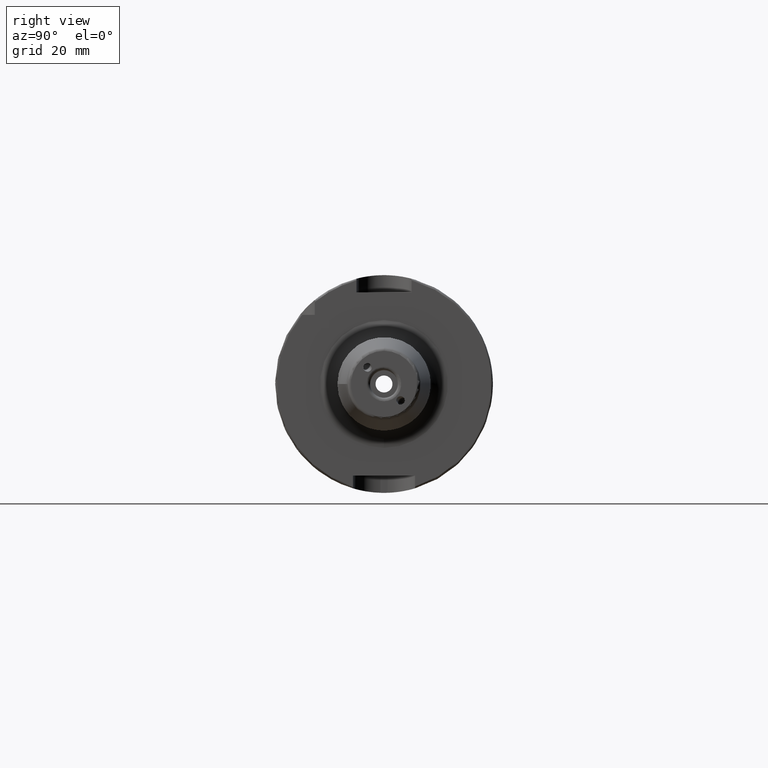
[diagram: clean part render]
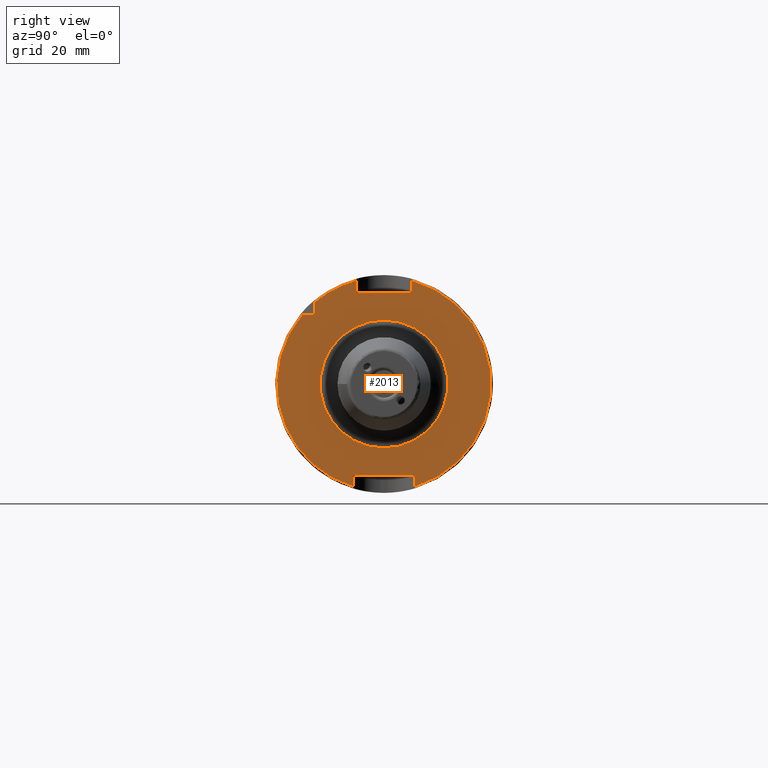
[diagram: same view with one face highlighted and labeled with its STEP entity id]
A machine part, right view. The second image highlights one B-rep face of the part: STEP entity #2013.
In plain terms, the highlighted planar face has unit normal (1, 0, 0).
Its self-contained STEP definition (entity closure, byte-faithful):
#92=FACE_BOUND('',#350,.T.);
#103=PLANE('',#2175);
#225=FACE_OUTER_BOUND('',#349,.T.);
#349=EDGE_LOOP('',(#1393,#1394,#1395,#1396,#1397,#1398,#1399,#1400,#1401,
#1402,#1403));
#350=EDGE_LOOP('',(#1404));
#476=LINE('',#3086,#586);
#477=LINE('',#3090,#587);
#478=LINE('',#3092,#588);
#479=LINE('',#3094,#589);
#480=LINE('',#3098,#590);
#481=LINE('',#3100,#591);
#482=LINE('',#3102,#592);
#483=LINE('',#3105,#593);
#586=VECTOR('',#2472,10.);
#587=VECTOR('',#2475,10.);
#588=VECTOR('',#2476,10.);
#589=VECTOR('',#2477,10.);
#590=VECTOR('',#2480,10.);
#591=VECTOR('',#2481,10.);
#592=VECTOR('',#2482,10.);
#593=VECTOR('',#2485,10.);
#703=CIRCLE('',#2172,18.5);
#705=CIRCLE('',#2176,31.);
#706=CIRCLE('',#2177,31.);
#707=CIRCLE('',#2178,31.);
#833=VERTEX_POINT('',#3077);
#834=VERTEX_POINT('',#3084);
#835=VERTEX_POINT('',#3085);
#836=VERTEX_POINT('',#3087);
#837=VERTEX_POINT('',#3089);
#838=VERTEX_POINT('',#3091);
#839=VERTEX_POINT('',#3093);
#840=VERTEX_POINT('',#3095);
#841=VERTEX_POINT('',#3097);
#842=VERTEX_POINT('',#3099);
#843=VERTEX_POINT('',#3101);
#844=VERTEX_POINT('',#3103);
#1047=EDGE_CURVE('',#833,#833,#703,.T.);
#1050=EDGE_CURVE('',#834,#835,#476,.T.);
#1051=EDGE_CURVE('',#835,#836,#705,.T.);
#1052=EDGE_CURVE('',#836,#837,#477,.T.);
#1053=EDGE_CURVE('',#837,#838,#478,.T.);
#1054=EDGE_CURVE('',#838,#839,#479,.T.);
#1055=EDGE_CURVE('',#839,#840,#706,.T.);
#1056=EDGE_CURVE('',#840,#841,#480,.T.);
#1057=EDGE_CURVE('',#841,#842,#481,.T.);
#1058=EDGE_CURVE('',#842,#843,#482,.T.);
#1059=EDGE_CURVE('',#843,#844,#707,.T.);
#1060=EDGE_CURVE('',#844,#834,#483,.T.);
#1393=ORIENTED_EDGE('',*,*,#1050,.T.);
#1394=ORIENTED_EDGE('',*,*,#1051,.T.);
#1395=ORIENTED_EDGE('',*,*,#1052,.T.);
#1396=ORIENTED_EDGE('',*,*,#1053,.T.);
#1397=ORIENTED_EDGE('',*,*,#1054,.T.);
#1398=ORIENTED_EDGE('',*,*,#1055,.T.);
#1399=ORIENTED_EDGE('',*,*,#1056,.T.);
#1400=ORIENTED_EDGE('',*,*,#1057,.T.);
#1401=ORIENTED_EDGE('',*,*,#1058,.T.);
#1402=ORIENTED_EDGE('',*,*,#1059,.T.);
#1403=ORIENTED_EDGE('',*,*,#1060,.T.);
#1404=ORIENTED_EDGE('',*,*,#1047,.F.);
#2013=ADVANCED_FACE('',(#225,#92),#103,.T.);
#2172=AXIS2_PLACEMENT_3D('',#3079,#2463,#2464);
#2175=AXIS2_PLACEMENT_3D('',#3083,#2470,#2471);
#2176=AXIS2_PLACEMENT_3D('',#3088,#2473,#2474);
#2177=AXIS2_PLACEMENT_3D('',#3096,#2478,#2479);
#2178=AXIS2_PLACEMENT_3D('',#3104,#2483,#2484);
#2463=DIRECTION('center_axis',(1.,0.,0.));
#2464=DIRECTION('ref_axis',(0.,-1.,-1.22464679914735E-16));
#2470=DIRECTION('center_axis',(1.,0.,0.));
#2471=DIRECTION('ref_axis',(0.,0.,-1.));
#2472=DIRECTION('',(0.,-1.,0.));
#2473=DIRECTION('center_axis',(1.,0.,0.));
#2474=DIRECTION('ref_axis',(0.,0.,-1.));
#2475=DIRECTION('',(0.,0.,1.));
#2476=DIRECTION('',(0.,1.,0.));
#2477=DIRECTION('',(0.,0.,-1.));
#2478=DIRECTION('center_axis',(1.,0.,0.));
#2479=DIRECTION('ref_axis',(0.,0.,-1.));
#2480=DIRECTION('',(0.,0.,-1.));
#2481=DIRECTION('',(0.,-1.,0.));
#2482=DIRECTION('',(0.,0.,1.));
#2483=DIRECTION('center_axis',(1.,0.,0.));
#2484=DIRECTION('ref_axis',(0.,0.,-1.));
#2485=DIRECTION('',(0.,0.,-1.));
#3077=CARTESIAN_POINT('',(26.,1.06507249545287E-15,-18.5));
#3079=CARTESIAN_POINT('Origin',(26.,3.33066907387547E-15,0.));
#3083=CARTESIAN_POINT('Origin',(26.,0.,0.));
#3084=CARTESIAN_POINT('',(26.,-20.,20.));
#3085=CARTESIAN_POINT('',(26.,-23.685438564654,20.));
#3086=CARTESIAN_POINT('',(26.,-12.,20.));
#3087=CARTESIAN_POINT('',(26.,-9.,-29.6647939483827));
#3088=CARTESIAN_POINT('Origin',(26.,0.,0.));
#3089=CARTESIAN_POINT('',(26.,-9.,-26.5));
#3090=CARTESIAN_POINT('',(26.,-9.,-13.25));
#3091=CARTESIAN_POINT('',(26.,9.,-26.5));
#3092=CARTESIAN_POINT('',(26.,1.94289029309402E-15,-26.5));
#3093=CARTESIAN_POINT('',(26.,9.,-29.6647939483827));
#3094=CARTESIAN_POINT('',(26.,9.,-13.25));
#3095=CARTESIAN_POINT('',(26.,8.,29.9499582637439));
#3096=CARTESIAN_POINT('Origin',(26.,0.,0.));
#3097=CARTESIAN_POINT('',(26.,8.,26.5));
#3098=CARTESIAN_POINT('',(26.,8.,13.25));
#3099=CARTESIAN_POINT('',(26.,-8.,26.5));
#3100=CARTESIAN_POINT('',(26.,5.55111512312578E-16,26.5));
#3101=CARTESIAN_POINT('',(26.,-8.,29.9499582637439));
#3102=CARTESIAN_POINT('',(26.,-8.,13.25));
#3103=CARTESIAN_POINT('',(26.,-20.,23.685438564654));
#3104=CARTESIAN_POINT('Origin',(26.,0.,0.));
#3105=CARTESIAN_POINT('',(26.,-20.,10.));